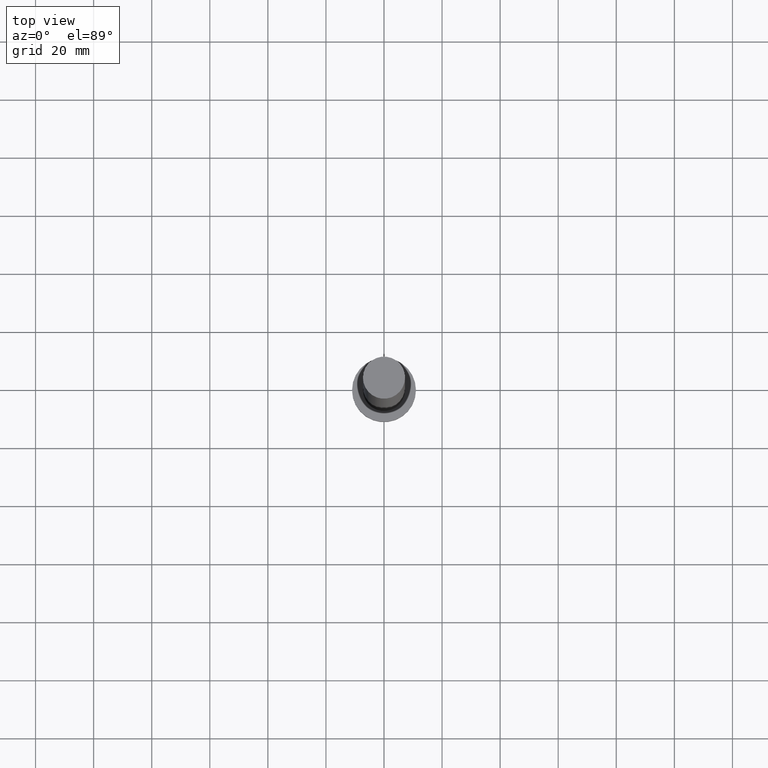
[diagram: clean part render]
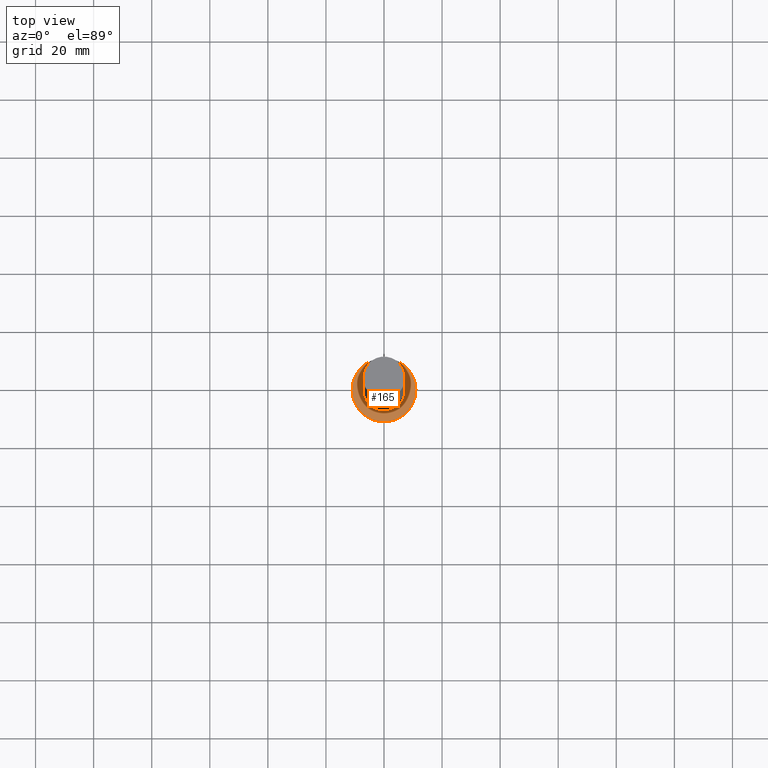
[diagram: same view with one face highlighted and labeled with its STEP entity id]
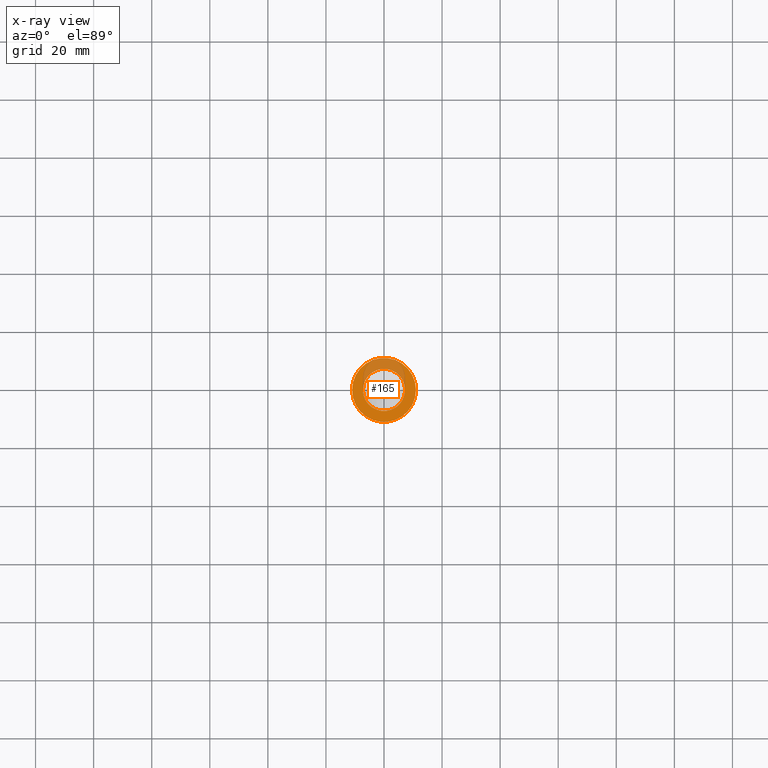
[diagram: x-ray of the same camera — body ghosted, the highlighted face saturated]
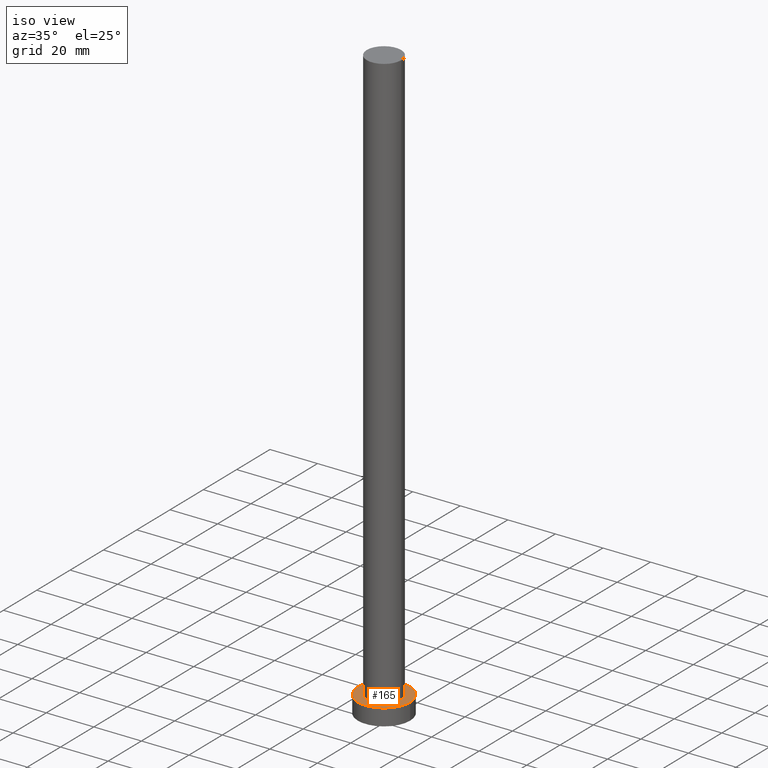
[diagram: same view with one face highlighted and labeled with its STEP entity id]
A machine part, top view. The second image highlights one B-rep face of the part: STEP entity #165.
The next image is the same camera in x-ray: the body ghosted, the highlighted face saturated — about 27% of this face is hidden behind the body in this view.
A second angle (iso view) of the same face is appended — the face is thin or edge-on in the first view.
In plain terms, the highlighted planar face has unit normal (0, 0, 1).
Its self-contained STEP definition (entity closure, byte-faithful):
#4 = CARTESIAN_POINT ( 'NONE',  ( 0.000000000000000000, 0.000000000000000000, 7.000000000000000000 ) ) ;
#7 = DIRECTION ( 'NONE',  ( 0.000000000000000000, 0.000000000000000000, 1.000000000000000000 ) ) ;
#11 = AXIS2_PLACEMENT_3D ( 'NONE', #81, #115, #42 ) ;
#35 = ORIENTED_EDGE ( 'NONE', *, *, #181, .T. ) ;
#41 = ORIENTED_EDGE ( 'NONE', *, *, #45, .F. ) ;
#42 = DIRECTION ( 'NONE',  ( 1.000000000000000000, 0.000000000000000000, 0.000000000000000000 ) ) ;
#43 = DIRECTION ( 'NONE',  ( 0.000000000000000000, 0.000000000000000000, 1.000000000000000000 ) ) ;
#44 = AXIS2_PLACEMENT_3D ( 'NONE', #4, #43, #155 ) ;
#45 = EDGE_CURVE ( 'NONE', #223, #153, #233, .T. ) ;
#52 = ORIENTED_EDGE ( 'NONE', *, *, #97, .T. ) ;
#66 = FACE_OUTER_BOUND ( 'NONE', #121, .T. ) ;
#74 = DIRECTION ( 'NONE',  ( 0.000000000000000000, 0.000000000000000000, 1.000000000000000000 ) ) ;
#75 = CARTESIAN_POINT ( 'NONE',  ( 7.250000000000000000, 8.878689293818310074E-16, 7.000000000000000000 ) ) ;
#78 = CIRCLE ( 'NONE', #139, 11.00000000000000000 ) ;
#81 = CARTESIAN_POINT ( 'NONE',  ( 0.000000000000000000, 0.000000000000000000, 7.000000000000000000 ) ) ;
#86 = CARTESIAN_POINT ( 'NONE',  ( -7.250000000000000000, 0.000000000000000000, 7.000000000000000000 ) ) ;
#87 = DIRECTION ( 'NONE',  ( 1.000000000000000000, 0.000000000000000000, -0.000000000000000000 ) ) ;
#95 = CIRCLE ( 'NONE', #247, 7.250000000000000000 ) ;
#97 = EDGE_CURVE ( 'NONE', #146, #133, #134, .T. ) ;
#104 = AXIS2_PLACEMENT_3D ( 'NONE', #179, #7, #87 ) ;
#106 = CARTESIAN_POINT ( 'NONE',  ( 0.000000000000000000, 0.000000000000000000, 7.000000000000000000 ) ) ;
#115 = DIRECTION ( 'NONE',  ( 0.000000000000000000, 0.000000000000000000, 1.000000000000000000 ) ) ;
#121 = EDGE_LOOP ( 'NONE', ( #35, #52 ) ) ;
#127 = CARTESIAN_POINT ( 'NONE',  ( 0.000000000000000000, 0.000000000000000000, 7.000000000000000000 ) ) ;
#133 = VERTEX_POINT ( 'NONE', #171 ) ;
#134 = CIRCLE ( 'NONE', #44, 11.00000000000000000 ) ;
#139 = AXIS2_PLACEMENT_3D ( 'NONE', #127, #74, #185 ) ;
#146 = VERTEX_POINT ( 'NONE', #172 ) ;
#153 = VERTEX_POINT ( 'NONE', #86 ) ;
#155 = DIRECTION ( 'NONE',  ( 1.000000000000000000, 0.000000000000000000, 0.000000000000000000 ) ) ;
#165 = ADVANCED_FACE ( 'NONE', ( #198, #66 ), #197, .T. ) ;
#170 = EDGE_CURVE ( 'NONE', #153, #223, #95, .T. ) ;
#171 = CARTESIAN_POINT ( 'NONE',  ( -11.00000000000000000, 0.000000000000000000, 7.000000000000000000 ) ) ;
#172 = CARTESIAN_POINT ( 'NONE',  ( 11.00000000000000000, 1.347111479062088405E-15, 7.000000000000000000 ) ) ;
#179 = CARTESIAN_POINT ( 'NONE',  ( 0.000000000000000000, 0.000000000000000000, 7.000000000000000000 ) ) ;
#181 = EDGE_CURVE ( 'NONE', #133, #146, #78, .T. ) ;
#185 = DIRECTION ( 'NONE',  ( 1.000000000000000000, 0.000000000000000000, 0.000000000000000000 ) ) ;
#197 = PLANE ( 'NONE',  #104 ) ;
#198 = FACE_BOUND ( 'NONE', #202, .T. ) ;
#202 = EDGE_LOOP ( 'NONE', ( #248, #41 ) ) ;
#223 = VERTEX_POINT ( 'NONE', #75 ) ;
#231 = DIRECTION ( 'NONE',  ( 0.000000000000000000, 0.000000000000000000, 1.000000000000000000 ) ) ;
#233 = CIRCLE ( 'NONE', #11, 7.250000000000000000 ) ;
#247 = AXIS2_PLACEMENT_3D ( 'NONE', #106, #231, #250 ) ;
#248 = ORIENTED_EDGE ( 'NONE', *, *, #170, .F. ) ;
#250 = DIRECTION ( 'NONE',  ( 1.000000000000000000, 0.000000000000000000, 0.000000000000000000 ) ) ;